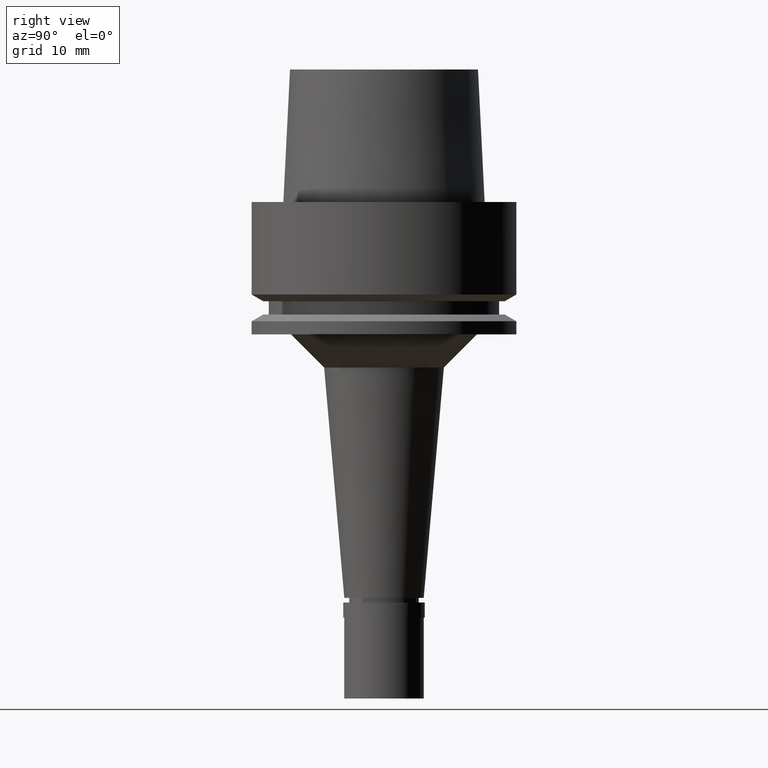
[diagram: clean part render]
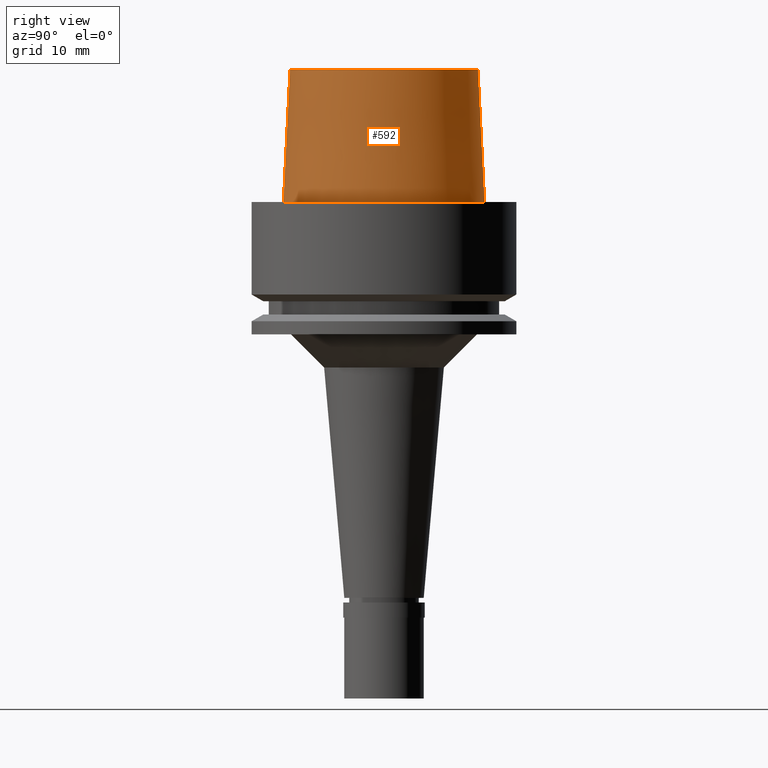
[diagram: same view with one face highlighted and labeled with its STEP entity id]
A machine part, right view. The second image highlights one B-rep face of the part: STEP entity #592.
In plain terms, the highlighted conical surface has half-angle 2.862 deg.
Its self-contained STEP definition (entity closure, byte-faithful):
#101 = DIRECTION ( 'NONE',  ( 0.0000000000000000000, 0.0000000000000000000, 1.000000000000000000 ) ) ;
#141 = EDGE_LOOP ( 'NONE', ( #1306, #541, #304, #1898 ) ) ;
#156 = VERTEX_POINT ( 'NONE', #336 ) ;
#182 = VERTEX_POINT ( 'NONE', #1583 ) ;
#218 = LINE ( 'NONE', #891, #841 ) ;
#299 = CARTESIAN_POINT ( 'NONE',  ( 0.0000000000000000000, 0.0000000000000000000, 20.00000000000000000 ) ) ;
#304 = ORIENTED_EDGE ( 'NONE', *, *, #1966, .T. ) ;
#336 = CARTESIAN_POINT ( 'NONE',  ( 0.0000000000000000000, -14.20000146305999955, 20.00000000000000000 ) ) ;
#409 = CIRCLE ( 'NONE', #1951, 14.20000146305999955 ) ;
#467 = FACE_OUTER_BOUND ( 'NONE', #141, .T. ) ;
#541 = ORIENTED_EDGE ( 'NONE', *, *, #1411, .T. ) ;
#592 = ADVANCED_FACE ( 'NONE', ( #467 ), #1000, .T. ) ;
#841 = VECTOR ( 'NONE', #2351, 999.9999999999998863 ) ;
#891 = CARTESIAN_POINT ( 'NONE',  ( 0.0000000000000000000, 14.20000146305999955, 20.00000000000000000 ) ) ;
#1000 = CONICAL_SURFACE ( 'NONE', #1842, 14.70000054865000116, 0.04995830450907576964 ) ;
#1112 = DIRECTION ( 'NONE',  ( 0.0000000000000000000, -0.04993752584496928548, -0.9987523434327867378 ) ) ;
#1176 = EDGE_CURVE ( 'NONE', #1630, #182, #218, .T. ) ;
#1306 = ORIENTED_EDGE ( 'NONE', *, *, #2694, .T. ) ;
#1315 = CARTESIAN_POINT ( 'NONE',  ( 0.0000000000000000000, 0.0000000000000000000, 6.821210263297000155E-13 ) ) ;
#1411 = EDGE_CURVE ( 'NONE', #156, #2181, #2140, .T. ) ;
#1468 = AXIS2_PLACEMENT_3D ( 'NONE', #1315, #101, #1582 ) ;
#1562 = DIRECTION ( 'NONE',  ( 0.0000000000000000000, 1.000000000000000000, 0.0000000000000000000 ) ) ;
#1571 = CARTESIAN_POINT ( 'NONE',  ( 0.0000000000000000000, 14.20000146305999955, 20.00000000000000000 ) ) ;
#1582 = DIRECTION ( 'NONE',  ( 0.0000000000000000000, -1.000000000000000000, 0.0000000000000000000 ) ) ;
#1583 = CARTESIAN_POINT ( 'NONE',  ( 0.0000000000000000000, 15.19999963424000100, 3.801403636316999971E-13 ) ) ;
#1630 = VERTEX_POINT ( 'NONE', #1571 ) ;
#1753 = DIRECTION ( 'NONE',  ( 0.0000000000000000000, 0.0000000000000000000, -1.000000000000000000 ) ) ;
#1842 = AXIS2_PLACEMENT_3D ( 'NONE', #2376, #2533, #2134 ) ;
#1898 = ORIENTED_EDGE ( 'NONE', *, *, #1176, .F. ) ;
#1951 = AXIS2_PLACEMENT_3D ( 'NONE', #299, #1753, #1562 ) ;
#1966 = EDGE_CURVE ( 'NONE', #2181, #182, #2493, .T. ) ;
#2070 = VECTOR ( 'NONE', #1112, 999.9999999999998863 ) ;
#2134 = DIRECTION ( 'NONE',  ( 0.0000000000000000000, -1.000000000000000000, 0.0000000000000000000 ) ) ;
#2140 = LINE ( 'NONE', #2340, #2070 ) ;
#2181 = VERTEX_POINT ( 'NONE', #2430 ) ;
#2340 = CARTESIAN_POINT ( 'NONE',  ( 0.0000000000000000000, -14.20000146305999955, 20.00000000000000000 ) ) ;
#2351 = DIRECTION ( 'NONE',  ( 0.0000000000000000000, 0.04993752584496928548, -0.9987523434327867378 ) ) ;
#2376 = CARTESIAN_POINT ( 'NONE',  ( 0.0000000000000000000, 0.0000000000000000000, 10.00000000000000000 ) ) ;
#2430 = CARTESIAN_POINT ( 'NONE',  ( 0.0000000000000000000, -15.19999963424000100, 3.801403636316999971E-13 ) ) ;
#2493 = CIRCLE ( 'NONE', #1468, 15.19999963424000100 ) ;
#2533 = DIRECTION ( 'NONE',  ( 0.0000000000000000000, 0.0000000000000000000, -1.000000000000000000 ) ) ;
#2694 = EDGE_CURVE ( 'NONE', #1630, #156, #409, .T. ) ;